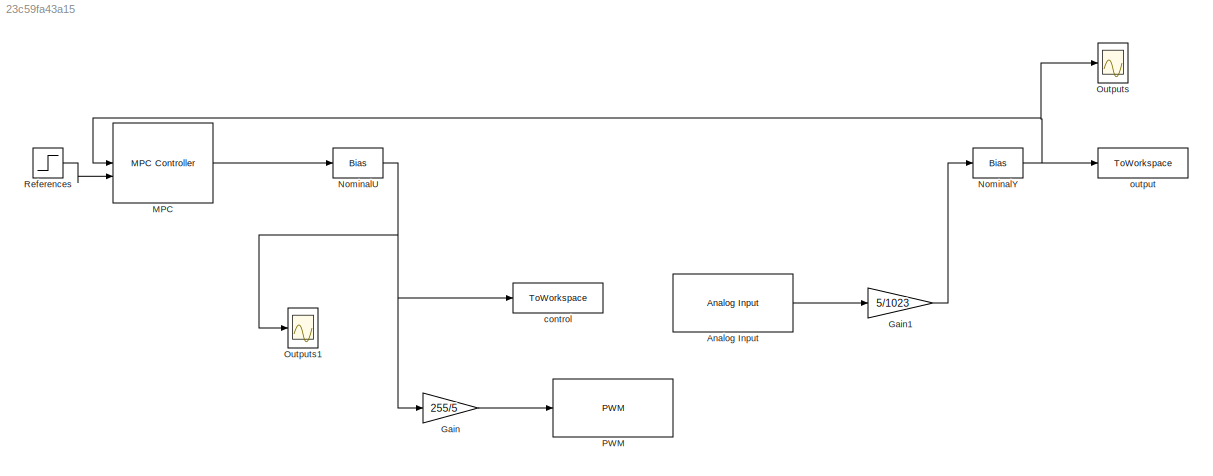
MODEL slx_23c59fa43a15
KIND model
CONFIG AbsTol = auto
CONFIG EnableMultiTasking = on
CONFIG FixedStep = auto
CONFIG MaxStep = auto
CONFIG MinStep = auto
CONFIG RelTol = 1e-3
CONFIG SampleTimeConstraint = Unconstrained
CONFIG SolverName = FixedStepAuto
CONFIG StartTime = 0.0
CONFIG StopTime = 2
BLOCK [Reference] Analog Input  REF=arduinolib/Analog Input
  SourceBlock = arduinolib/Analog Input
  SourceType = Arduino Analog Input
BLOCK [Gain] Gain
  Gain = 255/5
BLOCK [Gain] Gain1
  Gain = 5/1023
BLOCK [Reference] MPC  REF=mpclib/MPC Controller  (lib defined in mdl_ae329e0e0455)
  SCDEnableBlockLinearizationSpecification = on
  SourceBlock = mpclib/MPC Controller
  SourceType = MPC
BLOCK [Bias] NominalU
BLOCK [Bias] NominalY
BLOCK [Scope] Outputs
  Floating = off
  NumInputPorts = 1
  ScopeSpecificationString = Simulink.scopes.TimeScopeBlockCfg('CurrentConfiguration', extmgr.ConfigurationSet(extmgr.Configuration('Core','General UI',true),extmgr.Configuration('Core','Source UI',true),extmgr.Configuration('Sources','WiredSimulink',true),extmgr.Configuration('Visuals','Time Domain',true,'SerializedDisplays',{struct('MinYLimReal','-0.12586','MaxYLimReal','1.1327','YLabelReal','','MinYLimMag','0.00000','MaxYL...<+1324ch>
BLOCK [Scope] Outputs1
  Floating = off
  NumInputPorts = 1
  ScopeSpecificationString = Simulink.scopes.TimeScopeBlockCfg('CurrentConfiguration', extmgr.ConfigurationSet(extmgr.Configuration('Core','General UI',true),extmgr.Configuration('Core','Source UI',true),extmgr.Configuration('Sources','WiredSimulink',true,'DataLoggingVariableName','ScopeData1'),extmgr.Configuration('Visuals','Time Domain',true,'SerializedDisplays',{struct('MinYLimReal','-0.13147','MaxYLimReal','1.18319','YLab...<+1367ch>
BLOCK [Reference] PWM  REF=arduinolib/PWM
  SourceBlock = arduinolib/PWM
  SourceType = Arduino PWM
BLOCK [Step] References
  SampleTime = 0.01
BLOCK [ToWorkspace] control
  FixptAsFi = on
  MaxDataPoints = inf
  SampleTime = 0.01
  VariableName = cs
BLOCK [ToWorkspace] output
  FixptAsFi = on
  MaxDataPoints = inf
  SampleTime = 0.01
  VariableName = out
LINE Analog Input:1 -> Gain1:1
LINE Gain1:1 -> NominalY:1
LINE Gain:1 -> PWM:1
LINE MPC:1 -> NominalU:1
NET NominalU:1 -> Gain:1, Outputs1:1, control:1
NET NominalY:1 -> MPC:1, Outputs:1, output:1
LINE References:1 -> MPC:2
note: NET lines group one-source signal fan-out (src -> all destinations, sorted); 1:1 wires keep LINE
